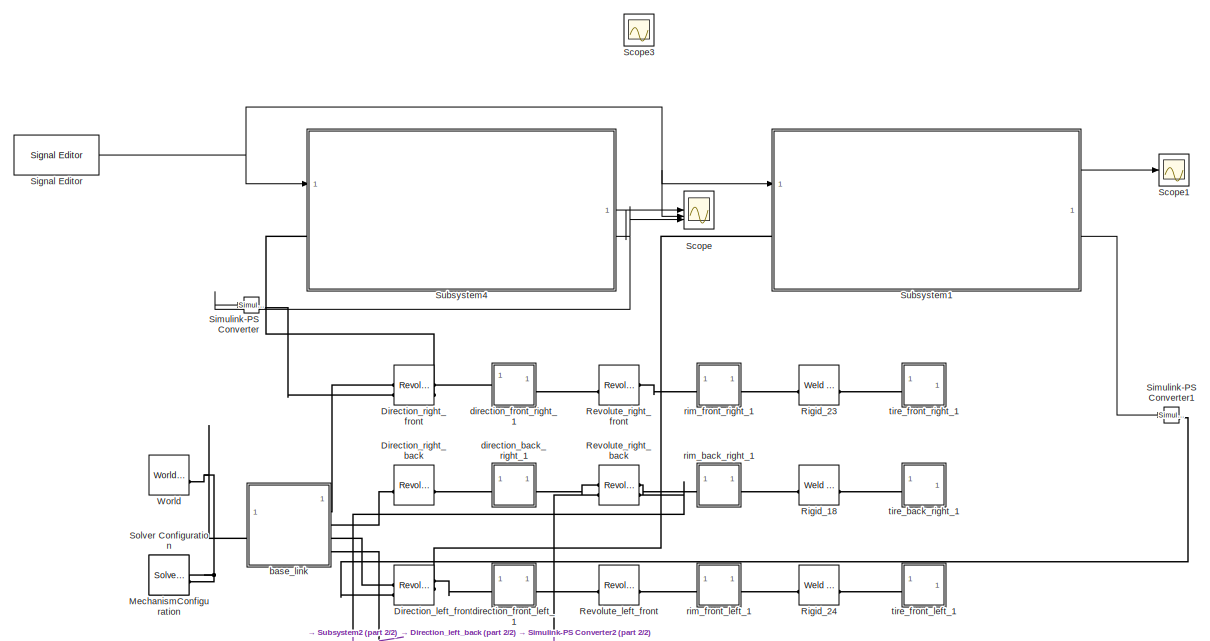
[diagram: root canvas - part 1/2, full width, top band]
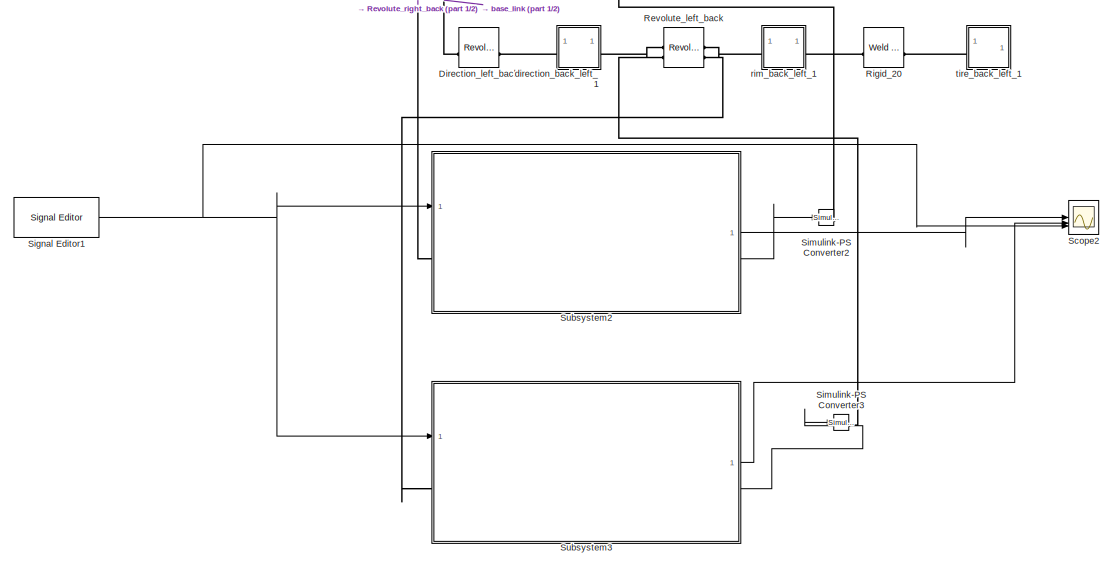
[diagram: root canvas - part 2/2, full width, bottom band]
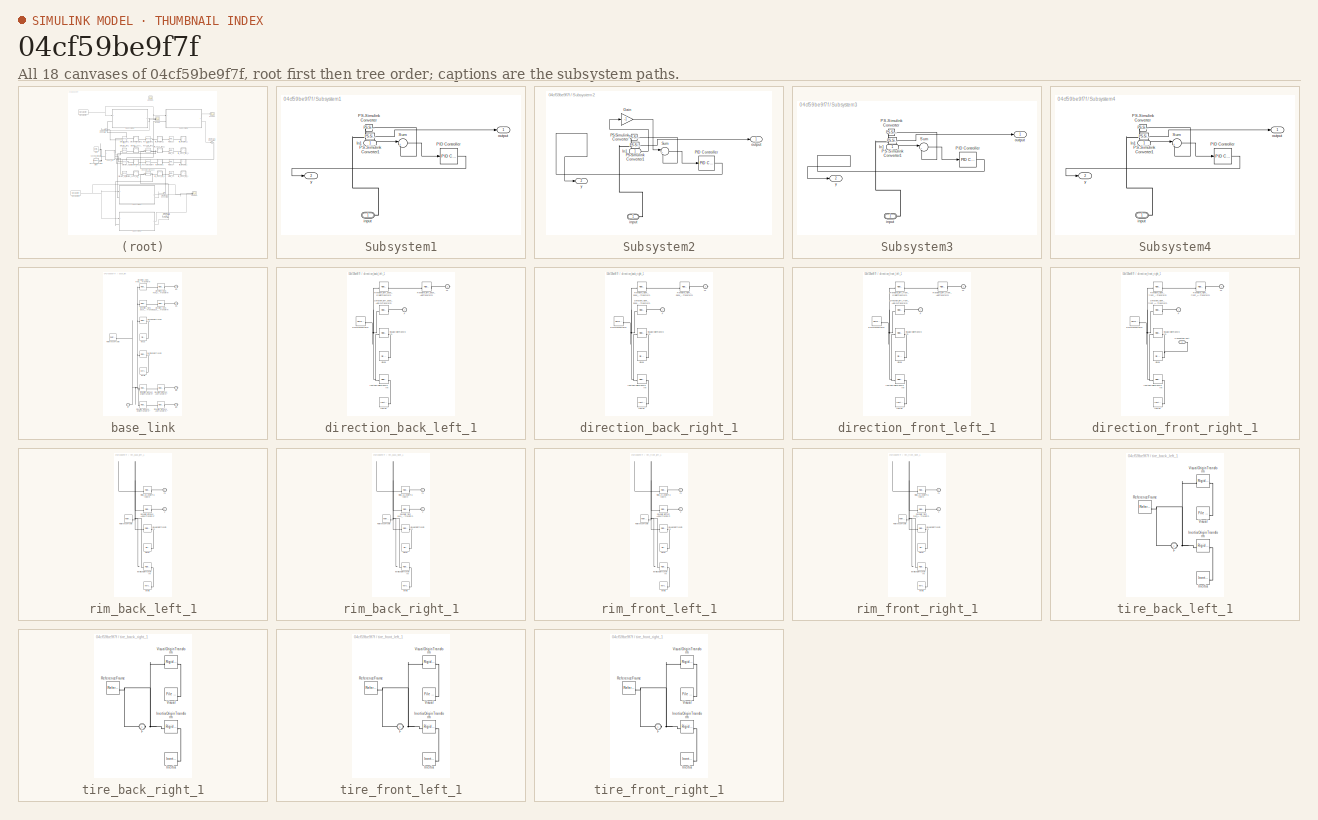
[diagram: thumbnail index - all 18 canvases of the model, root first then tree order]
MODEL slx_04cf59be9f7f
KIND model
CONFIG AbsTol = auto
CONFIG EnableMultiTasking = off
CONFIG FixedStep = auto
CONFIG MaxStep = auto
CONFIG MinStep = auto
CONFIG RelTol = 1e-3
CONFIG SampleTimeConstraint = Unconstrained
CONFIG SolverName = VariableStepAuto
CONFIG StartTime = 0.0
CONFIG StopTime = 10.0
BLOCK [Reference] Direction_left_back  REF=sm_lib/Joints/Revolute Joint
  SourceBlock = sm_lib/Joints/Revolute Joint
  SourceType = Revolute Joint
BLOCK [Reference] Direction_left_front  REF=sm_lib/Joints/Revolute Joint
  SourceBlock = sm_lib/Joints/Revolute Joint
  SourceType = Revolute Joint
BLOCK [Reference] Direction_right_back  REF=sm_lib/Joints/Revolute Joint
  SourceBlock = sm_lib/Joints/Revolute Joint
  SourceType = Revolute Joint
BLOCK [Reference] Direction_right_front  REF=sm_lib/Joints/Revolute Joint
  SourceBlock = sm_lib/Joints/Revolute Joint
  SourceType = Revolute Joint
BLOCK [Reference] MechanismConfiguration  REF=sm_lib/Utilities/Mechanism
Configuration
  SourceBlock = sm_lib/Utilities/Mechanism\nConfiguration
  SourceType = Mechanism\nConfiguration
BLOCK [Reference] Revolute_left_back  REF=sm_lib/Joints/Revolute Joint
  SourceBlock = sm_lib/Joints/Revolute Joint
  SourceType = Revolute Joint
BLOCK [Reference] Revolute_left_front  REF=sm_lib/Joints/Revolute Joint
  SourceBlock = sm_lib/Joints/Revolute Joint
  SourceType = Revolute Joint
BLOCK [Reference] Revolute_right_back  REF=sm_lib/Joints/Revolute Joint
  SourceBlock = sm_lib/Joints/Revolute Joint
  SourceType = Revolute Joint
BLOCK [Reference] Revolute_right_front  REF=sm_lib/Joints/Revolute Joint
  SourceBlock = sm_lib/Joints/Revolute Joint
  SourceType = Revolute Joint
BLOCK [Reference] Rigid_18  REF=sm_lib/Joints/Weld Joint
  SourceBlock = sm_lib/Joints/Weld Joint
  SourceType = Weld Joint
BLOCK [Reference] Rigid_20  REF=sm_lib/Joints/Weld Joint
  SourceBlock = sm_lib/Joints/Weld Joint
  SourceType = Weld Joint
BLOCK [Reference] Rigid_23  REF=sm_lib/Joints/Weld Joint
  SourceBlock = sm_lib/Joints/Weld Joint
  SourceType = Weld Joint
BLOCK [Reference] Rigid_24  REF=sm_lib/Joints/Weld Joint
  SourceBlock = sm_lib/Joints/Weld Joint
  SourceType = Weld Joint
BLOCK [Scope] Scope
  Floating = off
  NumInputPorts = 3
  ScopeSpecificationString = Simulink.scopes.TimeScopeBlockCfg('CurrentConfiguration', extmgr.ConfigurationSet(extmgr.Configuration('Core','General UI',true),extmgr.Configuration('Core','Source UI',true),extmgr.Configuration('Sources','WiredSimulink',true),extmgr.Configuration('Visuals','Time Domain',true,'SerializedDisplays',{struct('MinYLimReal','-12686.423','MaxYLimReal','12782.2982','YLabelReal','','MinYLimMag','   0.0000...<+1503ch>
BLOCK [Scope] Scope1
  Floating = off
  NumInputPorts = 1
  ScopeSpecificationString = Simulink.scopes.TimeScopeBlockCfg('CurrentConfiguration', extmgr.ConfigurationSet(extmgr.Configuration('Core','General UI',true),extmgr.Configuration('Core','Source UI',true),extmgr.Configuration('Sources','WiredSimulink',true,'DataLoggingVariableName','ScopeData1'),extmgr.Configuration('Visuals','Time Domain',true),extmgr.Configuration('Tools','Plot Navigation',true),extmgr.Configuration('Tools',...<+40ch>
BLOCK [Scope] Scope2
  Floating = off
  NumInputPorts = 3
  ScopeSpecificationString = Simulink.scopes.TimeScopeBlockCfg('CurrentConfiguration', extmgr.ConfigurationSet(extmgr.Configuration('Core','General UI',true),extmgr.Configuration('Core','Source UI',true),extmgr.Configuration('Sources','WiredSimulink',true,'DataLoggingVariableName','ScopeData2'),extmgr.Configuration('Visuals','Time Domain',true,'SerializedDisplays',{struct('MinYLimReal','-4.04234','MaxYLimReal','4.17582','YLab...<+1544ch>
BLOCK [Scope] Scope3
  Floating = off
  NumInputPorts = 1
  ScopeSpecificationString = Simulink.scopes.TimeScopeBlockCfg('CurrentConfiguration', extmgr.ConfigurationSet(extmgr.Configuration('Core','General UI',true),extmgr.Configuration('Core','Source UI',true),extmgr.Configuration('Sources','WiredSimulink',true,'DataLoggingVariableName','ScopeData3'),extmgr.Configuration('Visuals','Time Domain',true,'SerializedDisplays',{struct('MinYLimReal','-1.00000','MaxYLimReal','1.00000','YLab...<+1521ch>
BLOCK [Reference] Signal Editor  REF=SignalEditorBlockLib/Signal Editor
  LibrarySourceBlock = simulink/Sources/Signal Editor
  SourceBlock = SignalEditorBlockLib/Signal Editor
  SourceType = SignalEditor
  UserDataPersistent = on
BLOCK [Reference] Signal Editor1  REF=SignalEditorBlockLib/Signal Editor
  LibrarySourceBlock = simulink/Sources/Signal Editor
  SourceBlock = SignalEditorBlockLib/Signal Editor
  SourceType = SignalEditor
  UserDataPersistent = on
BLOCK [Reference] Simulink-PS Converter  REF=nesl_utility/Simulink-PS
Converter
  SourceBlock = nesl_utility/Simulink-PS\nConverter
  SourceType = Simulink-PS\nConverter
BLOCK [Reference] Simulink-PS Converter1  REF=nesl_utility/Simulink-PS
Converter
  SourceBlock = nesl_utility/Simulink-PS\nConverter
  SourceType = Simulink-PS\nConverter
BLOCK [Reference] Simulink-PS Converter2  REF=nesl_utility/Simulink-PS
Converter
  SourceBlock = nesl_utility/Simulink-PS\nConverter
  SourceType = Simulink-PS\nConverter
BLOCK [Reference] Simulink-PS Converter3  REF=nesl_utility/Simulink-PS
Converter
  SourceBlock = nesl_utility/Simulink-PS\nConverter
  SourceType = Simulink-PS\nConverter
BLOCK [Reference] Solver Configuration  REF=nesl_utility/Solver
Configuration
  SourceBlock = nesl_utility/Solver\nConfiguration
  SourceType = Solver\nConfiguration
BLOCK [SubSystem] Subsystem1
BLOCK [Inport] Subsystem1/In1
BLOCK [Reference] Subsystem1/PID Controller  REF=slpidlib/PID Controller
  SourceBlock = slpidlib/PID Controller
  SourceType = PID 1dof
BLOCK [Reference] Subsystem1/PS-Simulink Converter  REF=nesl_utility/PS-Simulink
Converter
  SourceBlock = nesl_utility/PS-Simulink\nConverter
  SourceType = PS-Simulink\nConverter
BLOCK [Reference] Subsystem1/PS-Simulink Converter1  REF=nesl_utility/PS-Simulink
Converter
  SourceBlock = nesl_utility/PS-Simulink\nConverter
  SourceType = PS-Simulink\nConverter
BLOCK [Sum] Subsystem1/Sum
  Inputs = |+-
BLOCK [PMIOPort] Subsystem1/input
  Side = Left
BLOCK [Outport] Subsystem1/output
BLOCK [Outport] Subsystem1/y
  Port = 2
BLOCK [SubSystem] Subsystem2
BLOCK [Gain] Subsystem2/Gain
  Gain = -1
BLOCK [Inport] Subsystem2/In1
BLOCK [Reference] Subsystem2/PID Controller  REF=slpidlib/PID Controller
  SourceBlock = slpidlib/PID Controller
  SourceType = PID 1dof
BLOCK [Reference] Subsystem2/PS-Simulink Converter  REF=nesl_utility/PS-Simulink
Converter
  SourceBlock = nesl_utility/PS-Simulink\nConverter
  SourceType = PS-Simulink\nConverter
BLOCK [Reference] Subsystem2/PS-Simulink Converter1  REF=nesl_utility/PS-Simulink
Converter
  SourceBlock = nesl_utility/PS-Simulink\nConverter
  SourceType = PS-Simulink\nConverter
BLOCK [Sum] Subsystem2/Sum
  Inputs = |+-
BLOCK [PMIOPort] Subsystem2/input
  Side = Left
BLOCK [Outport] Subsystem2/output
BLOCK [Outport] Subsystem2/y
  Port = 2
BLOCK [SubSystem] Subsystem3
BLOCK [Inport] Subsystem3/In1
BLOCK [Reference] Subsystem3/PID Controller  REF=slpidlib/PID Controller
  SourceBlock = slpidlib/PID Controller
  SourceType = PID 1dof
BLOCK [Reference] Subsystem3/PS-Simulink Converter  REF=nesl_utility/PS-Simulink
Converter
  SourceBlock = nesl_utility/PS-Simulink\nConverter
  SourceType = PS-Simulink\nConverter
BLOCK [Reference] Subsystem3/PS-Simulink Converter1  REF=nesl_utility/PS-Simulink
Converter
  SourceBlock = nesl_utility/PS-Simulink\nConverter
  SourceType = PS-Simulink\nConverter
BLOCK [Sum] Subsystem3/Sum
  Inputs = |+-
BLOCK [PMIOPort] Subsystem3/input
  Side = Left
BLOCK [Outport] Subsystem3/output
BLOCK [Outport] Subsystem3/y
  Port = 2
BLOCK [SubSystem] Subsystem4
BLOCK [Inport] Subsystem4/In1
BLOCK [Reference] Subsystem4/PID Controller  REF=slpidlib/PID Controller
  SourceBlock = slpidlib/PID Controller
  SourceType = PID 1dof
BLOCK [Reference] Subsystem4/PS-Simulink Converter  REF=nesl_utility/PS-Simulink
Converter
  SourceBlock = nesl_utility/PS-Simulink\nConverter
  SourceType = PS-Simulink\nConverter
BLOCK [Reference] Subsystem4/PS-Simulink Converter1  REF=nesl_utility/PS-Simulink
Converter
  SourceBlock = nesl_utility/PS-Simulink\nConverter
  SourceType = PS-Simulink\nConverter
BLOCK [Sum] Subsystem4/Sum
  Inputs = |+-
BLOCK [PMIOPort] Subsystem4/input
  Side = Left
BLOCK [Outport] Subsystem4/output
BLOCK [Outport] Subsystem4/y
  Port = 2
BLOCK [Reference] World  REF=sm_lib/Frames and
Transforms/World Frame
  SourceBlock = sm_lib/Frames and\nTransforms/World Frame
  SourceType = World Frame
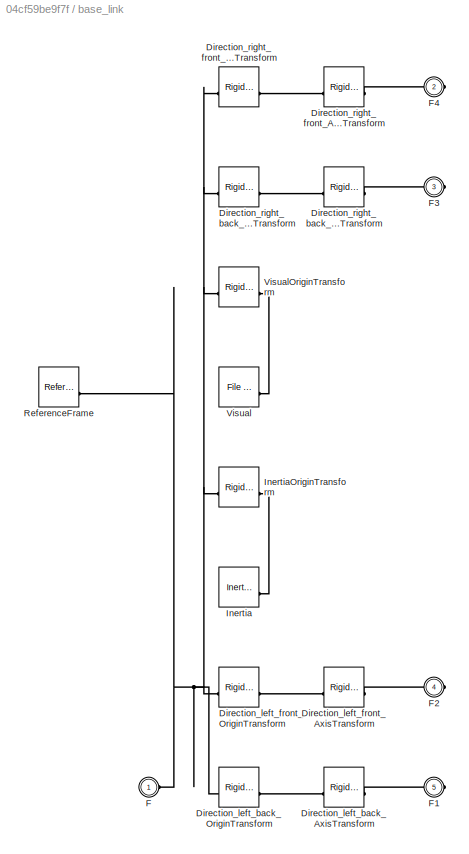
BLOCK [SubSystem] base_link
BLOCK [Reference] base_link/Direction_left_back_AxisTransform  REF=sm_lib/Frames and
Transforms/Rigid
Transform
  SourceBlock = sm_lib/Frames and\nTransforms/Rigid\nTransform
  SourceType = Rigid\nTransform
BLOCK [Reference] base_link/Direction_left_back_OriginTransform  REF=sm_lib/Frames and
Transforms/Rigid
Transform
  SourceBlock = sm_lib/Frames and\nTransforms/Rigid\nTransform
  SourceType = Rigid\nTransform
BLOCK [Reference] base_link/Direction_left_front_AxisTransform  REF=sm_lib/Frames and
Transforms/Rigid
Transform
  SourceBlock = sm_lib/Frames and\nTransforms/Rigid\nTransform
  SourceType = Rigid\nTransform
BLOCK [Reference] base_link/Direction_left_front_OriginTransform  REF=sm_lib/Frames and
Transforms/Rigid
Transform
  SourceBlock = sm_lib/Frames and\nTransforms/Rigid\nTransform
  SourceType = Rigid\nTransform
BLOCK [Reference] base_link/Direction_right_back_AxisTransform  REF=sm_lib/Frames and
Transforms/Rigid
Transform
  SourceBlock = sm_lib/Frames and\nTransforms/Rigid\nTransform
  SourceType = Rigid\nTransform
BLOCK [Reference] base_link/Direction_right_back_OriginTransform  REF=sm_lib/Frames and
Transforms/Rigid
Transform
  SourceBlock = sm_lib/Frames and\nTransforms/Rigid\nTransform
  SourceType = Rigid\nTransform
BLOCK [Reference] base_link/Direction_right_front_AxisTransform  REF=sm_lib/Frames and
Transforms/Rigid
Transform
  SourceBlock = sm_lib/Frames and\nTransforms/Rigid\nTransform
  SourceType = Rigid\nTransform
BLOCK [Reference] base_link/Direction_right_front_OriginTransform  REF=sm_lib/Frames and
Transforms/Rigid
Transform
  SourceBlock = sm_lib/Frames and\nTransforms/Rigid\nTransform
  SourceType = Rigid\nTransform
BLOCK [PMIOPort] base_link/F
  Side = Left
BLOCK [PMIOPort] base_link/F1
  Port = 5
  Side = Right
BLOCK [PMIOPort] base_link/F2
  Port = 4
  Side = Right
BLOCK [PMIOPort] base_link/F3
  Port = 3
  Side = Right
BLOCK [PMIOPort] base_link/F4
  Port = 2
  Side = Right
BLOCK [Reference] base_link/Inertia  REF=sm_lib/Body Elements/Inertia
  SourceBlock = sm_lib/Body Elements/Inertia
  SourceType = Inertia
BLOCK [Reference] base_link/InertiaOriginTransform  REF=sm_lib/Frames and
Transforms/Rigid
Transform
  SourceBlock = sm_lib/Frames and\nTransforms/Rigid\nTransform
  SourceType = Rigid\nTransform
BLOCK [Reference] base_link/ReferenceFrame  REF=sm_lib/Frames and
Transforms/Reference
Frame
  SourceBlock = sm_lib/Frames and\nTransforms/Reference\nFrame
  SourceType = Reference\nFrame
BLOCK [Reference] base_link/Visual  REF=sm_lib/Body Elements/File Solid
  SourceBlock = sm_lib/Body Elements/File Solid
  SourceType = File Solid
BLOCK [Reference] base_link/VisualOriginTransform  REF=sm_lib/Frames and
Transforms/Rigid
Transform
  SourceBlock = sm_lib/Frames and\nTransforms/Rigid\nTransform
  SourceType = Rigid\nTransform
BLOCK [SubSystem] direction_back_left_1
BLOCK [Reference] direction_back_left_1/Direction_left_back_AxisInvTransform  REF=sm_lib/Frames and
Transforms/Rigid
Transform
  SourceBlock = sm_lib/Frames and\nTransforms/Rigid\nTransform
  SourceType = Rigid\nTransform
BLOCK [PMIOPort] direction_back_left_1/F
  Side = Left
BLOCK [PMIOPort] direction_back_left_1/F1
  Port = 2
  Side = Right
BLOCK [Reference] direction_back_left_1/Inertia  REF=sm_lib/Body Elements/Inertia
  SourceBlock = sm_lib/Body Elements/Inertia
  SourceType = Inertia
BLOCK [Reference] direction_back_left_1/InertiaOriginTransform  REF=sm_lib/Frames and
Transforms/Rigid
Transform
  SourceBlock = sm_lib/Frames and\nTransforms/Rigid\nTransform
  SourceType = Rigid\nTransform
BLOCK [Reference] direction_back_left_1/ReferenceFrame  REF=sm_lib/Frames and
Transforms/Reference
Frame
  SourceBlock = sm_lib/Frames and\nTransforms/Reference\nFrame
  SourceType = Reference\nFrame
BLOCK [Reference] direction_back_left_1/Revolute_left_back_AxisTransform  REF=sm_lib/Frames and
Transforms/Rigid
Transform
  SourceBlock = sm_lib/Frames and\nTransforms/Rigid\nTransform
  SourceType = Rigid\nTransform
BLOCK [Reference] direction_back_left_1/Revolute_left_back_OriginTransform  REF=sm_lib/Frames and
Transforms/Rigid
Transform
  SourceBlock = sm_lib/Frames and\nTransforms/Rigid\nTransform
  SourceType = Rigid\nTransform
BLOCK [Reference] direction_back_left_1/Visual  REF=sm_lib/Body Elements/File Solid
  SourceBlock = sm_lib/Body Elements/File Solid
  SourceType = File Solid
BLOCK [Reference] direction_back_left_1/VisualOriginTransform  REF=sm_lib/Frames and
Transforms/Rigid
Transform
  SourceBlock = sm_lib/Frames and\nTransforms/Rigid\nTransform
  SourceType = Rigid\nTransform
BLOCK [SubSystem] direction_back_right_1
BLOCK [Reference] direction_back_right_1/Direction_right_back_AxisInvTransform  REF=sm_lib/Frames and
Transforms/Rigid
Transform
  SourceBlock = sm_lib/Frames and\nTransforms/Rigid\nTransform
  SourceType = Rigid\nTransform
BLOCK [PMIOPort] direction_back_right_1/F
  Side = Left
BLOCK [PMIOPort] direction_back_right_1/F1
  Port = 2
  Side = Right
BLOCK [Reference] direction_back_right_1/Inertia  REF=sm_lib/Body Elements/Inertia
  SourceBlock = sm_lib/Body Elements/Inertia
  SourceType = Inertia
BLOCK [Reference] direction_back_right_1/InertiaOriginTransform  REF=sm_lib/Frames and
Transforms/Rigid
Transform
  SourceBlock = sm_lib/Frames and\nTransforms/Rigid\nTransform
  SourceType = Rigid\nTransform
BLOCK [Reference] direction_back_right_1/ReferenceFrame  REF=sm_lib/Frames and
Transforms/Reference
Frame
  SourceBlock = sm_lib/Frames and\nTransforms/Reference\nFrame
  SourceType = Reference\nFrame
BLOCK [Reference] direction_back_right_1/Revolute_right_back_AxisTransform  REF=sm_lib/Frames and
Transforms/Rigid
Transform
  SourceBlock = sm_lib/Frames and\nTransforms/Rigid\nTransform
  SourceType = Rigid\nTransform
BLOCK [Reference] direction_back_right_1/Revolute_right_back_OriginTransform  REF=sm_lib/Frames and
Transforms/Rigid
Transform
  SourceBlock = sm_lib/Frames and\nTransforms/Rigid\nTransform
  SourceType = Rigid\nTransform
BLOCK [Reference] direction_back_right_1/Visual  REF=sm_lib/Body Elements/File Solid
  SourceBlock = sm_lib/Body Elements/File Solid
  SourceType = File Solid
BLOCK [Reference] direction_back_right_1/VisualOriginTransform  REF=sm_lib/Frames and
Transforms/Rigid
Transform
  SourceBlock = sm_lib/Frames and\nTransforms/Rigid\nTransform
  SourceType = Rigid\nTransform
BLOCK [SubSystem] direction_front_left_1
BLOCK [Reference] direction_front_left_1/Direction_left_front_AxisInvTransform  REF=sm_lib/Frames and
Transforms/Rigid
Transform
  SourceBlock = sm_lib/Frames and\nTransforms/Rigid\nTransform
  SourceType = Rigid\nTransform
BLOCK [PMIOPort] direction_front_left_1/F
  Side = Left
BLOCK [PMIOPort] direction_front_left_1/F1
  Port = 2
  Side = Right
BLOCK [Reference] direction_front_left_1/Inertia  REF=sm_lib/Body Elements/Inertia
  SourceBlock = sm_lib/Body Elements/Inertia
  SourceType = Inertia
BLOCK [Reference] direction_front_left_1/InertiaOriginTransform  REF=sm_lib/Frames and
Transforms/Rigid
Transform
  SourceBlock = sm_lib/Frames and\nTransforms/Rigid\nTransform
  SourceType = Rigid\nTransform
BLOCK [Reference] direction_front_left_1/ReferenceFrame  REF=sm_lib/Frames and
Transforms/Reference
Frame
  SourceBlock = sm_lib/Frames and\nTransforms/Reference\nFrame
  SourceType = Reference\nFrame
BLOCK [Reference] direction_front_left_1/Revolute_left_front_AxisTransform  REF=sm_lib/Frames and
Transforms/Rigid
Transform
  SourceBlock = sm_lib/Frames and\nTransforms/Rigid\nTransform
  SourceType = Rigid\nTransform
BLOCK [Reference] direction_front_left_1/Revolute_left_front_OriginTransform  REF=sm_lib/Frames and
Transforms/Rigid
Transform
  SourceBlock = sm_lib/Frames and\nTransforms/Rigid\nTransform
  SourceType = Rigid\nTransform
BLOCK [Reference] direction_front_left_1/Visual  REF=sm_lib/Body Elements/File Solid
  SourceBlock = sm_lib/Body Elements/File Solid
  SourceType = File Solid
BLOCK [Reference] direction_front_left_1/VisualOriginTransform  REF=sm_lib/Frames and
Transforms/Rigid
Transform
  SourceBlock = sm_lib/Frames and\nTransforms/Rigid\nTransform
  SourceType = Rigid\nTransform
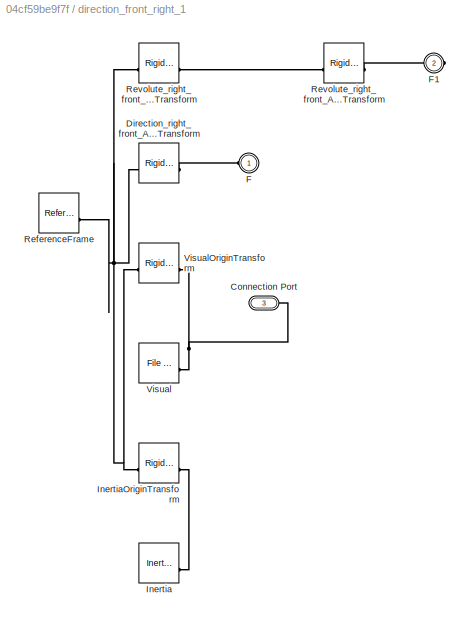
BLOCK [SubSystem] direction_front_right_1
BLOCK [PMIOPort] direction_front_right_1/Connection Port
  Port = 3
  Side = Left
BLOCK [Reference] direction_front_right_1/Direction_right_front_AxisInvTransform  REF=sm_lib/Frames and
Transforms/Rigid
Transform
  SourceBlock = sm_lib/Frames and\nTransforms/Rigid\nTransform
  SourceType = Rigid\nTransform
BLOCK [PMIOPort] direction_front_right_1/F
  Side = Left
BLOCK [PMIOPort] direction_front_right_1/F1
  Port = 2
  Side = Right
BLOCK [Reference] direction_front_right_1/Inertia  REF=sm_lib/Body Elements/Inertia
  SourceBlock = sm_lib/Body Elements/Inertia
  SourceType = Inertia
BLOCK [Reference] direction_front_right_1/InertiaOriginTransform  REF=sm_lib/Frames and
Transforms/Rigid
Transform
  SourceBlock = sm_lib/Frames and\nTransforms/Rigid\nTransform
  SourceType = Rigid\nTransform
BLOCK [Reference] direction_front_right_1/ReferenceFrame  REF=sm_lib/Frames and
Transforms/Reference
Frame
  SourceBlock = sm_lib/Frames and\nTransforms/Reference\nFrame
  SourceType = Reference\nFrame
BLOCK [Reference] direction_front_right_1/Revolute_right_front_AxisTransform  REF=sm_lib/Frames and
Transforms/Rigid
Transform
  SourceBlock = sm_lib/Frames and\nTransforms/Rigid\nTransform
  SourceType = Rigid\nTransform
BLOCK [Reference] direction_front_right_1/Revolute_right_front_OriginTransform  REF=sm_lib/Frames and
Transforms/Rigid
Transform
  SourceBlock = sm_lib/Frames and\nTransforms/Rigid\nTransform
  SourceType = Rigid\nTransform
BLOCK [Reference] direction_front_right_1/Visual  REF=sm_lib/Body Elements/File Solid
  SourceBlock = sm_lib/Body Elements/File Solid
  SourceType = File Solid
BLOCK [Reference] direction_front_right_1/VisualOriginTransform  REF=sm_lib/Frames and
Transforms/Rigid
Transform
  SourceBlock = sm_lib/Frames and\nTransforms/Rigid\nTransform
  SourceType = Rigid\nTransform
BLOCK [SubSystem] rim_back_left_1
BLOCK [PMIOPort] rim_back_left_1/F
  Side = Left
BLOCK [PMIOPort] rim_back_left_1/F1
  Port = 2
  Side = Right
BLOCK [Reference] rim_back_left_1/Inertia  REF=sm_lib/Body Elements/Inertia
  SourceBlock = sm_lib/Body Elements/Inertia
  SourceType = Inertia
BLOCK [Reference] rim_back_left_1/InertiaOriginTransform  REF=sm_lib/Frames and
Transforms/Rigid
Transform
  SourceBlock = sm_lib/Frames and\nTransforms/Rigid\nTransform
  SourceType = Rigid\nTransform
BLOCK [Reference] rim_back_left_1/ReferenceFrame  REF=sm_lib/Frames and
Transforms/Reference
Frame
  SourceBlock = sm_lib/Frames and\nTransforms/Reference\nFrame
  SourceType = Reference\nFrame
BLOCK [Reference] rim_back_left_1/Revolute_left_back_AxisInvTransform  REF=sm_lib/Frames and
Transforms/Rigid
Transform
  SourceBlock = sm_lib/Frames and\nTransforms/Rigid\nTransform
  SourceType = Rigid\nTransform
BLOCK [Reference] rim_back_left_1/Rigid_20_OriginTransform  REF=sm_lib/Frames and
Transforms/Rigid
Transform
  SourceBlock = sm_lib/Frames and\nTransforms/Rigid\nTransform
  SourceType = Rigid\nTransform
BLOCK [Reference] rim_back_left_1/Visual  REF=sm_lib/Body Elements/File Solid
  SourceBlock = sm_lib/Body Elements/File Solid
  SourceType = File Solid
BLOCK [Reference] rim_back_left_1/VisualOriginTransform  REF=sm_lib/Frames and
Transforms/Rigid
Transform
  SourceBlock = sm_lib/Frames and\nTransforms/Rigid\nTransform
  SourceType = Rigid\nTransform
BLOCK [SubSystem] rim_back_right_1
BLOCK [PMIOPort] rim_back_right_1/F
  Side = Left
BLOCK [PMIOPort] rim_back_right_1/F1
  Port = 2
  Side = Right
BLOCK [Reference] rim_back_right_1/Inertia  REF=sm_lib/Body Elements/Inertia
  SourceBlock = sm_lib/Body Elements/Inertia
  SourceType = Inertia
BLOCK [Reference] rim_back_right_1/InertiaOriginTransform  REF=sm_lib/Frames and
Transforms/Rigid
Transform
  SourceBlock = sm_lib/Frames and\nTransforms/Rigid\nTransform
  SourceType = Rigid\nTransform
BLOCK [Reference] rim_back_right_1/ReferenceFrame  REF=sm_lib/Frames and
Transforms/Reference
Frame
  SourceBlock = sm_lib/Frames and\nTransforms/Reference\nFrame
  SourceType = Reference\nFrame
BLOCK [Reference] rim_back_right_1/Revolute_right_back_AxisInvTransform  REF=sm_lib/Frames and
Transforms/Rigid
Transform
  SourceBlock = sm_lib/Frames and\nTransforms/Rigid\nTransform
  SourceType = Rigid\nTransform
BLOCK [Reference] rim_back_right_1/Rigid_18_OriginTransform  REF=sm_lib/Frames and
Transforms/Rigid
Transform
  SourceBlock = sm_lib/Frames and\nTransforms/Rigid\nTransform
  SourceType = Rigid\nTransform
BLOCK [Reference] rim_back_right_1/Visual  REF=sm_lib/Body Elements/File Solid
  SourceBlock = sm_lib/Body Elements/File Solid
  SourceType = File Solid
BLOCK [Reference] rim_back_right_1/VisualOriginTransform  REF=sm_lib/Frames and
Transforms/Rigid
Transform
  SourceBlock = sm_lib/Frames and\nTransforms/Rigid\nTransform
  SourceType = Rigid\nTransform
BLOCK [SubSystem] rim_front_left_1
BLOCK [PMIOPort] rim_front_left_1/F
  Side = Left
BLOCK [PMIOPort] rim_front_left_1/F1
  Port = 2
  Side = Right
BLOCK [Reference] rim_front_left_1/Inertia  REF=sm_lib/Body Elements/Inertia
  SourceBlock = sm_lib/Body Elements/Inertia
  SourceType = Inertia
BLOCK [Reference] rim_front_left_1/InertiaOriginTransform  REF=sm_lib/Frames and
Transforms/Rigid
Transform
  SourceBlock = sm_lib/Frames and\nTransforms/Rigid\nTransform
  SourceType = Rigid\nTransform
BLOCK [Reference] rim_front_left_1/ReferenceFrame  REF=sm_lib/Frames and
Transforms/Reference
Frame
  SourceBlock = sm_lib/Frames and\nTransforms/Reference\nFrame
  SourceType = Reference\nFrame
BLOCK [Reference] rim_front_left_1/Revolute_left_front_AxisInvTransform  REF=sm_lib/Frames and
Transforms/Rigid
Transform
  SourceBlock = sm_lib/Frames and\nTransforms/Rigid\nTransform
  SourceType = Rigid\nTransform
BLOCK [Reference] rim_front_left_1/Rigid_24_OriginTransform  REF=sm_lib/Frames and
Transforms/Rigid
Transform
  SourceBlock = sm_lib/Frames and\nTransforms/Rigid\nTransform
  SourceType = Rigid\nTransform
BLOCK [Reference] rim_front_left_1/Visual  REF=sm_lib/Body Elements/File Solid
  SourceBlock = sm_lib/Body Elements/File Solid
  SourceType = File Solid
BLOCK [Reference] rim_front_left_1/VisualOriginTransform  REF=sm_lib/Frames and
Transforms/Rigid
Transform
  SourceBlock = sm_lib/Frames and\nTransforms/Rigid\nTransform
  SourceType = Rigid\nTransform
BLOCK [SubSystem] rim_front_right_1
BLOCK [PMIOPort] rim_front_right_1/F
  Side = Left
BLOCK [PMIOPort] rim_front_right_1/F1
  Port = 2
  Side = Right
BLOCK [Reference] rim_front_right_1/Inertia  REF=sm_lib/Body Elements/Inertia
  SourceBlock = sm_lib/Body Elements/Inertia
  SourceType = Inertia
BLOCK [Reference] rim_front_right_1/InertiaOriginTransform  REF=sm_lib/Frames and
Transforms/Rigid
Transform
  SourceBlock = sm_lib/Frames and\nTransforms/Rigid\nTransform
  SourceType = Rigid\nTransform
BLOCK [Reference] rim_front_right_1/ReferenceFrame  REF=sm_lib/Frames and
Transforms/Reference
Frame
  SourceBlock = sm_lib/Frames and\nTransforms/Reference\nFrame
  SourceType = Reference\nFrame
BLOCK [Reference] rim_front_right_1/Revolute_right_front_AxisInvTransform  REF=sm_lib/Frames and
Transforms/Rigid
Transform
  SourceBlock = sm_lib/Frames and\nTransforms/Rigid\nTransform
  SourceType = Rigid\nTransform
BLOCK [Reference] rim_front_right_1/Rigid_23_OriginTransform  REF=sm_lib/Frames and
Transforms/Rigid
Transform
  SourceBlock = sm_lib/Frames and\nTransforms/Rigid\nTransform
  SourceType = Rigid\nTransform
BLOCK [Reference] rim_front_right_1/Visual  REF=sm_lib/Body Elements/File Solid
  SourceBlock = sm_lib/Body Elements/File Solid
  SourceType = File Solid
BLOCK [Reference] rim_front_right_1/VisualOriginTransform  REF=sm_lib/Frames and
Transforms/Rigid
Transform
  SourceBlock = sm_lib/Frames and\nTransforms/Rigid\nTransform
  SourceType = Rigid\nTransform
BLOCK [SubSystem] tire_back_left_1
BLOCK [PMIOPort] tire_back_left_1/F
  Side = Left
BLOCK [Reference] tire_back_left_1/Inertia  REF=sm_lib/Body Elements/Inertia
  SourceBlock = sm_lib/Body Elements/Inertia
  SourceType = Inertia
BLOCK [Reference] tire_back_left_1/InertiaOriginTransform  REF=sm_lib/Frames and
Transforms/Rigid
Transform
  SourceBlock = sm_lib/Frames and\nTransforms/Rigid\nTransform
  SourceType = Rigid\nTransform
BLOCK [Reference] tire_back_left_1/ReferenceFrame  REF=sm_lib/Frames and
Transforms/Reference
Frame
  SourceBlock = sm_lib/Frames and\nTransforms/Reference\nFrame
  SourceType = Reference\nFrame
BLOCK [Reference] tire_back_left_1/Visual  REF=sm_lib/Body Elements/File Solid
  SourceBlock = sm_lib/Body Elements/File Solid
  SourceType = File Solid
BLOCK [Reference] tire_back_left_1/VisualOriginTransform  REF=sm_lib/Frames and
Transforms/Rigid
Transform
  SourceBlock = sm_lib/Frames and\nTransforms/Rigid\nTransform
  SourceType = Rigid\nTransform
BLOCK [SubSystem] tire_back_right_1
BLOCK [PMIOPort] tire_back_right_1/F
  Side = Left
BLOCK [Reference] tire_back_right_1/Inertia  REF=sm_lib/Body Elements/Inertia
  SourceBlock = sm_lib/Body Elements/Inertia
  SourceType = Inertia
BLOCK [Reference] tire_back_right_1/InertiaOriginTransform  REF=sm_lib/Frames and
Transforms/Rigid
Transform
  SourceBlock = sm_lib/Frames and\nTransforms/Rigid\nTransform
  SourceType = Rigid\nTransform
BLOCK [Reference] tire_back_right_1/ReferenceFrame  REF=sm_lib/Frames and
Transforms/Reference
Frame
  SourceBlock = sm_lib/Frames and\nTransforms/Reference\nFrame
  SourceType = Reference\nFrame
BLOCK [Reference] tire_back_right_1/Visual  REF=sm_lib/Body Elements/File Solid
  SourceBlock = sm_lib/Body Elements/File Solid
  SourceType = File Solid
BLOCK [Reference] tire_back_right_1/VisualOriginTransform  REF=sm_lib/Frames and
Transforms/Rigid
Transform
  SourceBlock = sm_lib/Frames and\nTransforms/Rigid\nTransform
  SourceType = Rigid\nTransform
BLOCK [SubSystem] tire_front_left_1
BLOCK [PMIOPort] tire_front_left_1/F
  Side = Left
BLOCK [Reference] tire_front_left_1/Inertia  REF=sm_lib/Body Elements/Inertia
  SourceBlock = sm_lib/Body Elements/Inertia
  SourceType = Inertia
BLOCK [Reference] tire_front_left_1/InertiaOriginTransform  REF=sm_lib/Frames and
Transforms/Rigid
Transform
  SourceBlock = sm_lib/Frames and\nTransforms/Rigid\nTransform
  SourceType = Rigid\nTransform
BLOCK [Reference] tire_front_left_1/ReferenceFrame  REF=sm_lib/Frames and
Transforms/Reference
Frame
  SourceBlock = sm_lib/Frames and\nTransforms/Reference\nFrame
  SourceType = Reference\nFrame
BLOCK [Reference] tire_front_left_1/Visual  REF=sm_lib/Body Elements/File Solid
  SourceBlock = sm_lib/Body Elements/File Solid
  SourceType = File Solid
BLOCK [Reference] tire_front_left_1/VisualOriginTransform  REF=sm_lib/Frames and
Transforms/Rigid
Transform
  SourceBlock = sm_lib/Frames and\nTransforms/Rigid\nTransform
  SourceType = Rigid\nTransform
BLOCK [SubSystem] tire_front_right_1
BLOCK [PMIOPort] tire_front_right_1/F
  Side = Left
BLOCK [Reference] tire_front_right_1/Inertia  REF=sm_lib/Body Elements/Inertia
  SourceBlock = sm_lib/Body Elements/Inertia
  SourceType = Inertia
BLOCK [Reference] tire_front_right_1/InertiaOriginTransform  REF=sm_lib/Frames and
Transforms/Rigid
Transform
  SourceBlock = sm_lib/Frames and\nTransforms/Rigid\nTransform
  SourceType = Rigid\nTransform
BLOCK [Reference] tire_front_right_1/ReferenceFrame  REF=sm_lib/Frames and
Transforms/Reference
Frame
  SourceBlock = sm_lib/Frames and\nTransforms/Reference\nFrame
  SourceType = Reference\nFrame
BLOCK [Reference] tire_front_right_1/Visual  REF=sm_lib/Body Elements/File Solid
  SourceBlock = sm_lib/Body Elements/File Solid
  SourceType = File Solid
BLOCK [Reference] tire_front_right_1/VisualOriginTransform  REF=sm_lib/Frames and
Transforms/Rigid
Transform
  SourceBlock = sm_lib/Frames and\nTransforms/Rigid\nTransform
  SourceType = Rigid\nTransform
NET Signal Editor1:1 -> Scope2:3, Subsystem2:1, Subsystem3:1
NET Signal Editor:1 -> Scope:2, Subsystem1:1, Subsystem4:1
LINE Subsystem1/In1:1 -> Subsystem1/Sum:1
LINE Subsystem1/PID Controller:1 -> Subsystem1/y:1
LINE Subsystem1/PS-Simulink Converter1:1 -> Subsystem1/output:1
LINE Subsystem1/PS-Simulink Converter:1 -> Subsystem1/Sum:2
LINE Subsystem1/Sum:1 -> Subsystem1/PID Controller:1
LINE Subsystem1:1 -> Scope1:1
LINE Subsystem1:2 -> Simulink-PS Converter1:1
LINE Subsystem2/Gain:1 -> Subsystem2/Sum:1
LINE Subsystem2/In1:1 -> Subsystem2/Gain:1
LINE Subsystem2/PID Controller:1 -> Subsystem2/y:1
LINE Subsystem2/PS-Simulink Converter1:1 -> Subsystem2/output:1
LINE Subsystem2/PS-Simulink Converter:1 -> Subsystem2/Sum:2
LINE Subsystem2/Sum:1 -> Subsystem2/PID Controller:1
LINE Subsystem2:1 -> Scope2:1
LINE Subsystem2:2 -> Simulink-PS Converter2:1
LINE Subsystem3/In1:1 -> Subsystem3/Sum:1
LINE Subsystem3/PID Controller:1 -> Subsystem3/y:1
LINE Subsystem3/PS-Simulink Converter1:1 -> Subsystem3/output:1
LINE Subsystem3/PS-Simulink Converter:1 -> Subsystem3/Sum:2
LINE Subsystem3/Sum:1 -> Subsystem3/PID Controller:1
LINE Subsystem3:1 -> Scope2:2
LINE Subsystem3:2 -> Simulink-PS Converter3:1
LINE Subsystem4/In1:1 -> Subsystem4/Sum:1
LINE Subsystem4/PID Controller:1 -> Subsystem4/y:1
LINE Subsystem4/PS-Simulink Converter1:1 -> Subsystem4/output:1
LINE Subsystem4/PS-Simulink Converter:1 -> Subsystem4/Sum:2
LINE Subsystem4/Sum:1 -> Subsystem4/PID Controller:1
LINE Subsystem4:1 -> Scope:1
NET Subsystem4:2 -> Scope:3, Simulink-PS Converter:1
PLINE Direction_left_back:LConn1 -- base_link:RConn4
PLINE Direction_left_back:RConn1 -- direction_back_left_1:LConn1
PLINE Direction_left_front:LConn1 -- base_link:RConn3
PLINE Direction_left_front:LConn2 -- Simulink-PS Converter1:RConn1
PLINE Direction_left_front:RConn1 -- direction_front_left_1:LConn1
PLINE Direction_left_front:RConn2 -- Subsystem1:LConn1
PLINE Direction_right_back:LConn1 -- base_link:RConn2
PLINE Direction_right_back:RConn1 -- direction_back_right_1:LConn1
PLINE Direction_right_front:LConn1 -- base_link:RConn1
PLINE Direction_right_front:LConn2 -- Simulink-PS Converter:RConn1
PLINE Direction_right_front:RConn1 -- direction_front_right_1:LConn1
PLINE Direction_right_front:RConn2 -- Subsystem4:LConn1
PNET net1: MechanismConfiguration:RConn1 -- Solver Configuration:RConn1 -- World:RConn1 -- base_link:LConn1
PLINE Revolute_left_back:LConn1 -- direction_back_left_1:RConn1
PLINE Revolute_left_back:LConn2 -- Simulink-PS Converter3:RConn1
PLINE Revolute_left_back:RConn1 -- rim_back_left_1:LConn1
PLINE Revolute_left_back:RConn2 -- Subsystem3:LConn1
PLINE Revolute_left_front:LConn1 -- direction_front_left_1:RConn1
PLINE Revolute_left_front:RConn1 -- rim_front_left_1:LConn1
PLINE Revolute_right_back:LConn1 -- direction_back_right_1:RConn1
PLINE Revolute_right_back:LConn2 -- Simulink-PS Converter2:RConn1
PLINE Revolute_right_back:RConn1 -- rim_back_right_1:LConn1
PLINE Revolute_right_back:RConn2 -- Subsystem2:LConn1
PLINE Revolute_right_front:LConn1 -- direction_front_right_1:RConn1
PLINE Revolute_right_front:RConn1 -- rim_front_right_1:LConn1
PLINE Rigid_18:LConn1 -- rim_back_right_1:RConn1
PLINE Rigid_18:RConn1 -- tire_back_right_1:LConn1
PLINE Rigid_20:LConn1 -- rim_back_left_1:RConn1
PLINE Rigid_20:RConn1 -- tire_back_left_1:LConn1
PLINE Rigid_23:LConn1 -- rim_front_right_1:RConn1
PLINE Rigid_23:RConn1 -- tire_front_right_1:LConn1
PLINE Rigid_24:LConn1 -- rim_front_left_1:RConn1
PLINE Rigid_24:RConn1 -- tire_front_left_1:LConn1
PNET net2: Subsystem1/PS-Simulink Converter1:LConn1 -- Subsystem1/PS-Simulink Converter:LConn1 -- Subsystem1/input:RConn1
PNET net3: Subsystem2/PS-Simulink Converter1:LConn1 -- Subsystem2/PS-Simulink Converter:LConn1 -- Subsystem2/input:RConn1
PNET net4: Subsystem3/PS-Simulink Converter1:LConn1 -- Subsystem3/PS-Simulink Converter:LConn1 -- Subsystem3/input:RConn1
PNET net5: Subsystem4/PS-Simulink Converter1:LConn1 -- Subsystem4/PS-Simulink Converter:LConn1 -- Subsystem4/input:RConn1
PLINE base_link/Direction_left_back_AxisTransform:LConn1 -- base_link/Direction_left_back_OriginTransform:RConn1
PLINE base_link/Direction_left_back_AxisTransform:RConn1 -- base_link/F1:RConn1
PNET net6: base_link/Direction_left_back_OriginTransform:LConn1 -- base_link/Direction_left_front_OriginTransform:LConn1 -- base_link/Direction_right_back_OriginTransform:LConn1 -- base_link/Direction_right_front_OriginTransform:LConn1 -- base_link/F:RConn1 -- base_link/InertiaOriginTransform:LConn1 -- base_link/ReferenceFrame:RConn1 -- base_link/VisualOriginTransform:LConn1
PLINE base_link/Direction_left_front_AxisTransform:LConn1 -- base_link/Direction_left_front_OriginTransform:RConn1
PLINE base_link/Direction_left_front_AxisTransform:RConn1 -- base_link/F2:RConn1
PLINE base_link/Direction_right_back_AxisTransform:LConn1 -- base_link/Direction_right_back_OriginTransform:RConn1
PLINE base_link/Direction_right_back_AxisTransform:RConn1 -- base_link/F3:RConn1
PLINE base_link/Direction_right_front_AxisTransform:LConn1 -- base_link/Direction_right_front_OriginTransform:RConn1
PLINE base_link/Direction_right_front_AxisTransform:RConn1 -- base_link/F4:RConn1
PLINE base_link/Inertia:RConn1 -- base_link/InertiaOriginTransform:RConn1
PLINE base_link/Visual:RConn1 -- base_link/VisualOriginTransform:RConn1
PNET net7: direction_back_left_1/Direction_left_back_AxisInvTransform:LConn1 -- direction_back_left_1/InertiaOriginTransform:LConn1 -- direction_back_left_1/ReferenceFrame:RConn1 -- direction_back_left_1/Revolute_left_back_OriginTransform:LConn1 -- direction_back_left_1/VisualOriginTransform:LConn1
PLINE direction_back_left_1/Direction_left_back_AxisInvTransform:RConn1 -- direction_back_left_1/F:RConn1
PLINE direction_back_left_1/F1:RConn1 -- direction_back_left_1/Revolute_left_back_AxisTransform:RConn1
PLINE direction_back_left_1/Inertia:RConn1 -- direction_back_left_1/InertiaOriginTransform:RConn1
PLINE direction_back_left_1/Revolute_left_back_AxisTransform:LConn1 -- direction_back_left_1/Revolute_left_back_OriginTransform:RConn1
PLINE direction_back_left_1/Visual:RConn1 -- direction_back_left_1/VisualOriginTransform:RConn1
PNET net8: direction_back_right_1/Direction_right_back_AxisInvTransform:LConn1 -- direction_back_right_1/InertiaOriginTransform:LConn1 -- direction_back_right_1/ReferenceFrame:RConn1 -- direction_back_right_1/Revolute_right_back_OriginTransform:LConn1 -- direction_back_right_1/VisualOriginTransform:LConn1
PLINE direction_back_right_1/Direction_right_back_AxisInvTransform:RConn1 -- direction_back_right_1/F:RConn1
PLINE direction_back_right_1/F1:RConn1 -- direction_back_right_1/Revolute_right_back_AxisTransform:RConn1
PLINE direction_back_right_1/Inertia:RConn1 -- direction_back_right_1/InertiaOriginTransform:RConn1
PLINE direction_back_right_1/Revolute_right_back_AxisTransform:LConn1 -- direction_back_right_1/Revolute_right_back_OriginTransform:RConn1
PLINE direction_back_right_1/Visual:RConn1 -- direction_back_right_1/VisualOriginTransform:RConn1
PNET net9: direction_front_left_1/Direction_left_front_AxisInvTransform:LConn1 -- direction_front_left_1/InertiaOriginTransform:LConn1 -- direction_front_left_1/ReferenceFrame:RConn1 -- direction_front_left_1/Revolute_left_front_OriginTransform:LConn1 -- direction_front_left_1/VisualOriginTransform:LConn1
PLINE direction_front_left_1/Direction_left_front_AxisInvTransform:RConn1 -- direction_front_left_1/F:RConn1
PLINE direction_front_left_1/F1:RConn1 -- direction_front_left_1/Revolute_left_front_AxisTransform:RConn1
PLINE direction_front_left_1/Inertia:RConn1 -- direction_front_left_1/InertiaOriginTransform:RConn1
PLINE direction_front_left_1/Revolute_left_front_AxisTransform:LConn1 -- direction_front_left_1/Revolute_left_front_OriginTransform:RConn1
PLINE direction_front_left_1/Visual:RConn1 -- direction_front_left_1/VisualOriginTransform:RConn1
PNET net10: direction_front_right_1/Connection Port:RConn1 -- direction_front_right_1/Visual:RConn1 -- direction_front_right_1/VisualOriginTransform:RConn1
PNET net11: direction_front_right_1/Direction_right_front_AxisInvTransform:LConn1 -- direction_front_right_1/InertiaOriginTransform:LConn1 -- direction_front_right_1/ReferenceFrame:RConn1 -- direction_front_right_1/Revolute_right_front_OriginTransform:LConn1 -- direction_front_right_1/VisualOriginTransform:LConn1
PLINE direction_front_right_1/Direction_right_front_AxisInvTransform:RConn1 -- direction_front_right_1/F:RConn1
PLINE direction_front_right_1/F1:RConn1 -- direction_front_right_1/Revolute_right_front_AxisTransform:RConn1
PLINE direction_front_right_1/Inertia:RConn1 -- direction_front_right_1/InertiaOriginTransform:RConn1
PLINE direction_front_right_1/Revolute_right_front_AxisTransform:LConn1 -- direction_front_right_1/Revolute_right_front_OriginTransform:RConn1
PLINE rim_back_left_1/F1:RConn1 -- rim_back_left_1/Rigid_20_OriginTransform:RConn1
PLINE rim_back_left_1/F:RConn1 -- rim_back_left_1/Revolute_left_back_AxisInvTransform:RConn1
PLINE rim_back_left_1/Inertia:RConn1 -- rim_back_left_1/InertiaOriginTransform:RConn1
PNET net12: rim_back_left_1/InertiaOriginTransform:LConn1 -- rim_back_left_1/ReferenceFrame:RConn1 -- rim_back_left_1/Revolute_left_back_AxisInvTransform:LConn1 -- rim_back_left_1/Rigid_20_OriginTransform:LConn1 -- rim_back_left_1/VisualOriginTransform:LConn1
PLINE rim_back_left_1/Visual:RConn1 -- rim_back_left_1/VisualOriginTransform:RConn1
PLINE rim_back_right_1/F1:RConn1 -- rim_back_right_1/Rigid_18_OriginTransform:RConn1
PLINE rim_back_right_1/F:RConn1 -- rim_back_right_1/Revolute_right_back_AxisInvTransform:RConn1
PLINE rim_back_right_1/Inertia:RConn1 -- rim_back_right_1/InertiaOriginTransform:RConn1
PNET net13: rim_back_right_1/InertiaOriginTransform:LConn1 -- rim_back_right_1/ReferenceFrame:RConn1 -- rim_back_right_1/Revolute_right_back_AxisInvTransform:LConn1 -- rim_back_right_1/Rigid_18_OriginTransform:LConn1 -- rim_back_right_1/VisualOriginTransform:LConn1
PLINE rim_back_right_1/Visual:RConn1 -- rim_back_right_1/VisualOriginTransform:RConn1
PLINE rim_front_left_1/F1:RConn1 -- rim_front_left_1/Rigid_24_OriginTransform:RConn1
PLINE rim_front_left_1/F:RConn1 -- rim_front_left_1/Revolute_left_front_AxisInvTransform:RConn1
PLINE rim_front_left_1/Inertia:RConn1 -- rim_front_left_1/InertiaOriginTransform:RConn1
PNET net14: rim_front_left_1/InertiaOriginTransform:LConn1 -- rim_front_left_1/ReferenceFrame:RConn1 -- rim_front_left_1/Revolute_left_front_AxisInvTransform:LConn1 -- rim_front_left_1/Rigid_24_OriginTransform:LConn1 -- rim_front_left_1/VisualOriginTransform:LConn1
PLINE rim_front_left_1/Visual:RConn1 -- rim_front_left_1/VisualOriginTransform:RConn1
PLINE rim_front_right_1/F1:RConn1 -- rim_front_right_1/Rigid_23_OriginTransform:RConn1
PLINE rim_front_right_1/F:RConn1 -- rim_front_right_1/Revolute_right_front_AxisInvTransform:RConn1
PLINE rim_front_right_1/Inertia:RConn1 -- rim_front_right_1/InertiaOriginTransform:RConn1
PNET net15: rim_front_right_1/InertiaOriginTransform:LConn1 -- rim_front_right_1/ReferenceFrame:RConn1 -- rim_front_right_1/Revolute_right_front_AxisInvTransform:LConn1 -- rim_front_right_1/Rigid_23_OriginTransform:LConn1 -- rim_front_right_1/VisualOriginTransform:LConn1
PLINE rim_front_right_1/Visual:RConn1 -- rim_front_right_1/VisualOriginTransform:RConn1
PNET net16: tire_back_left_1/F:RConn1 -- tire_back_left_1/InertiaOriginTransform:LConn1 -- tire_back_left_1/ReferenceFrame:RConn1 -- tire_back_left_1/VisualOriginTransform:LConn1
PLINE tire_back_left_1/Inertia:RConn1 -- tire_back_left_1/InertiaOriginTransform:RConn1
PLINE tire_back_left_1/Visual:RConn1 -- tire_back_left_1/VisualOriginTransform:RConn1
PNET net17: tire_back_right_1/F:RConn1 -- tire_back_right_1/InertiaOriginTransform:LConn1 -- tire_back_right_1/ReferenceFrame:RConn1 -- tire_back_right_1/VisualOriginTransform:LConn1
PLINE tire_back_right_1/Inertia:RConn1 -- tire_back_right_1/InertiaOriginTransform:RConn1
PLINE tire_back_right_1/Visual:RConn1 -- tire_back_right_1/VisualOriginTransform:RConn1
PNET net18: tire_front_left_1/F:RConn1 -- tire_front_left_1/InertiaOriginTransform:LConn1 -- tire_front_left_1/ReferenceFrame:RConn1 -- tire_front_left_1/VisualOriginTransform:LConn1
PLINE tire_front_left_1/Inertia:RConn1 -- tire_front_left_1/InertiaOriginTransform:RConn1
PLINE tire_front_left_1/Visual:RConn1 -- tire_front_left_1/VisualOriginTransform:RConn1
PNET net19: tire_front_right_1/F:RConn1 -- tire_front_right_1/InertiaOriginTransform:LConn1 -- tire_front_right_1/ReferenceFrame:RConn1 -- tire_front_right_1/VisualOriginTransform:LConn1
PLINE tire_front_right_1/Inertia:RConn1 -- tire_front_right_1/InertiaOriginTransform:RConn1
PLINE tire_front_right_1/Visual:RConn1 -- tire_front_right_1/VisualOriginTransform:RConn1
note: NET lines group one-source signal fan-out (src -> all destinations, sorted); 1:1 wires keep LINE; PNET lines group multi-terminal physical nets as a canonical sorted terminal list (undirected conserving connections); 2-terminal nets keep the pairwise PLINE form
